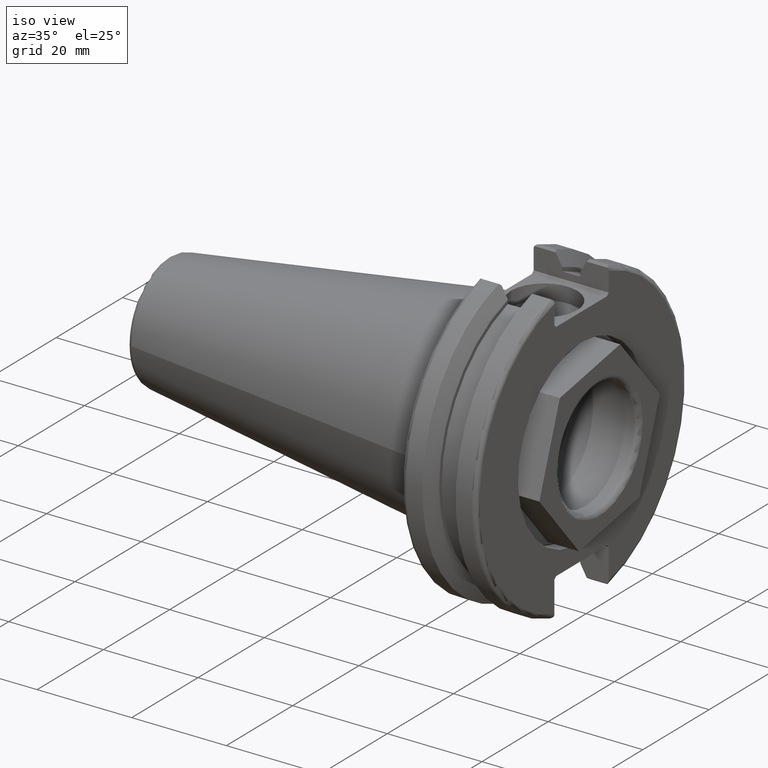
[diagram: clean part render]
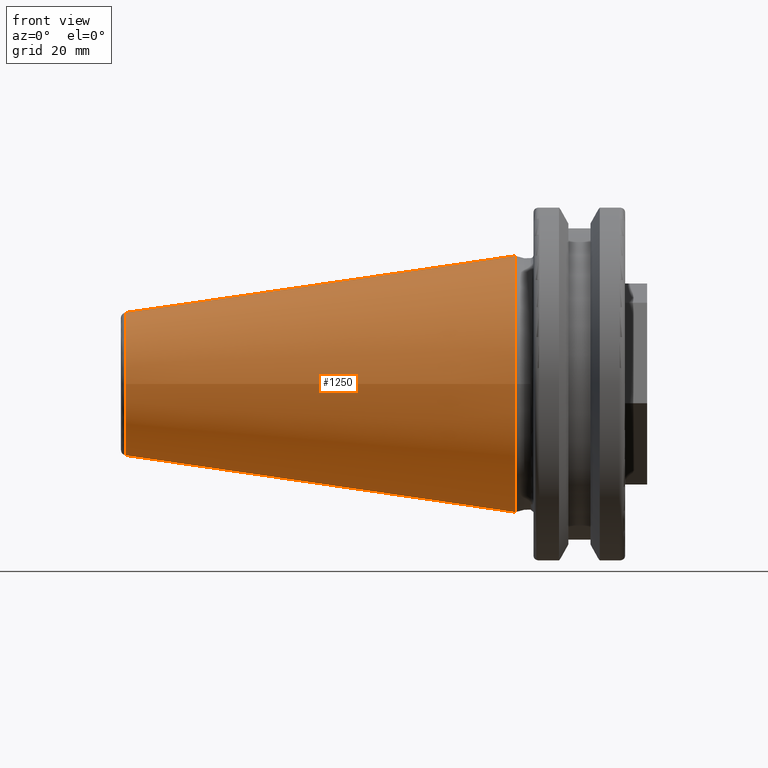
[diagram: tour spotlight — one face highlighted and labeled with its STEP entity id]
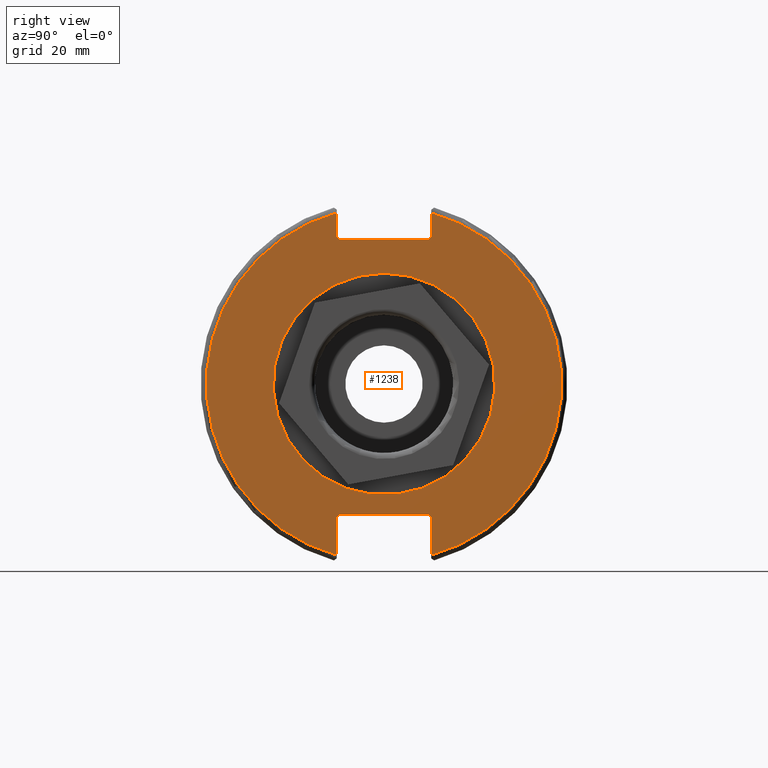
[diagram: tour spotlight — one face highlighted and labeled with its STEP entity id]
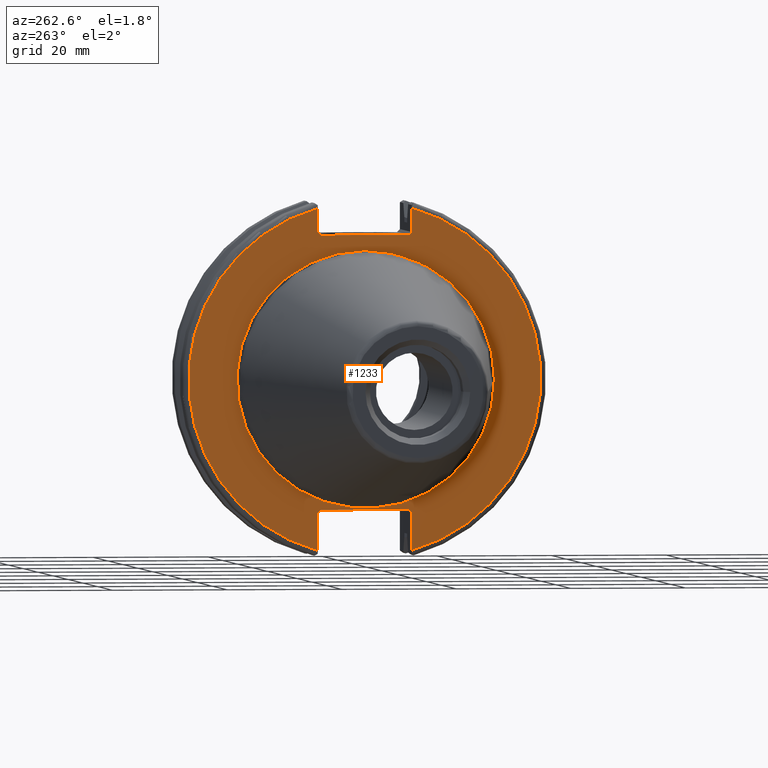
[diagram: tour spotlight — one face highlighted and labeled with its STEP entity id]
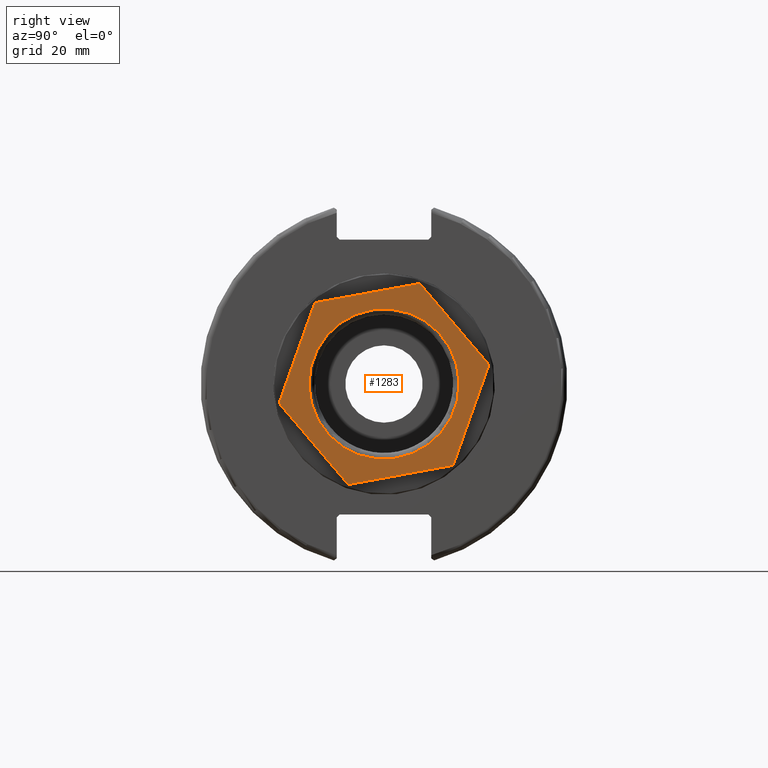
[diagram: tour spotlight — one face highlighted and labeled with its STEP entity id]
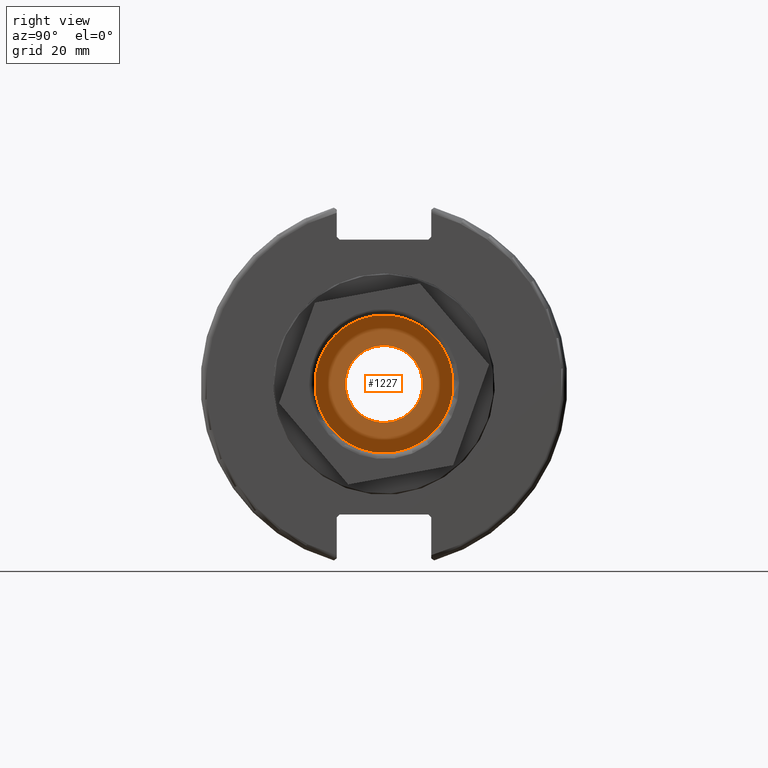
[diagram: tour spotlight — one face highlighted and labeled with its STEP entity id]
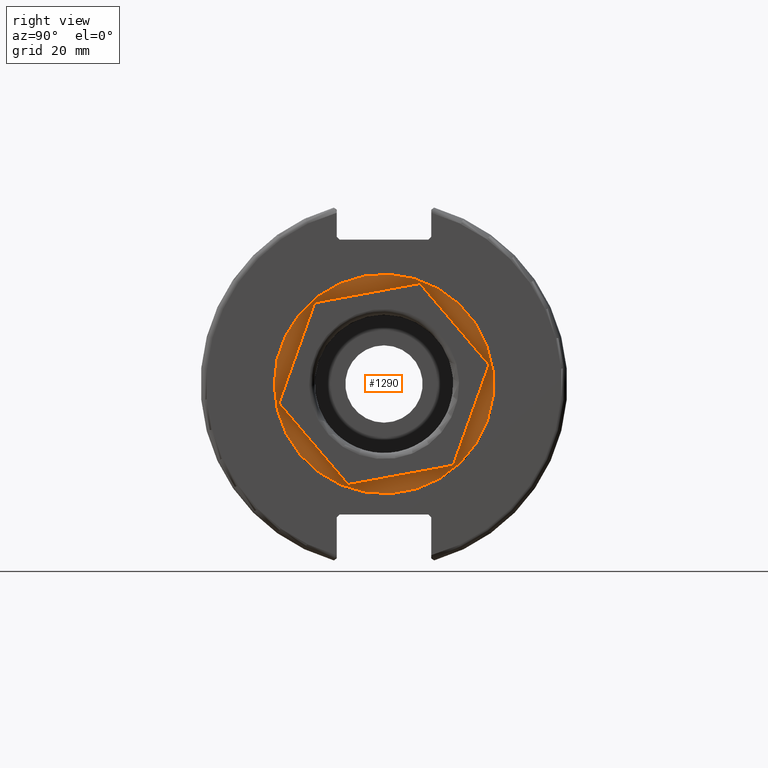
[diagram: tour spotlight — one face highlighted and labeled with its STEP entity id]
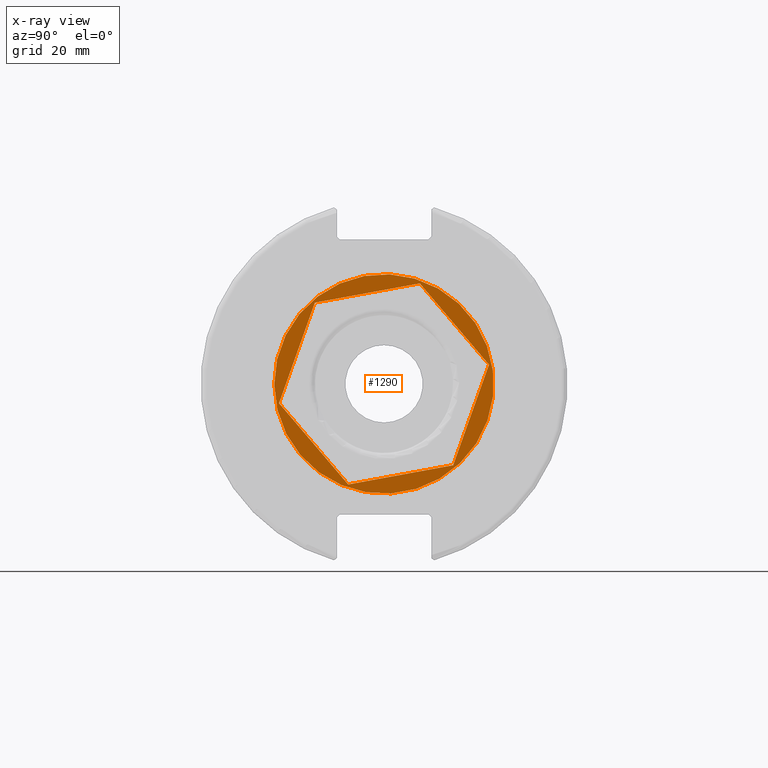
[diagram: x-ray of the same camera — body ghosted, this tour face saturated]
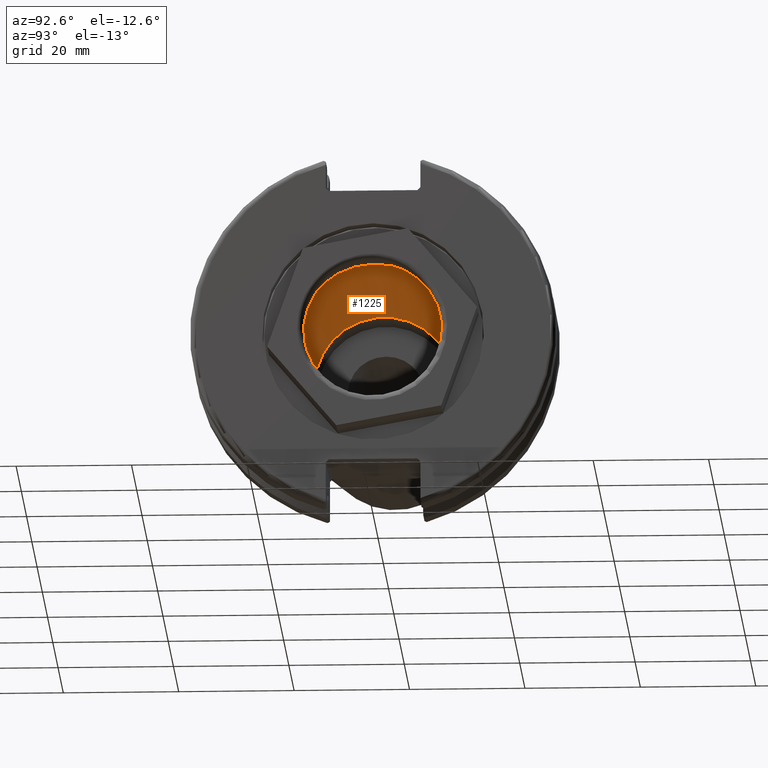
[diagram: tour spotlight — one face highlighted and labeled with its STEP entity id]
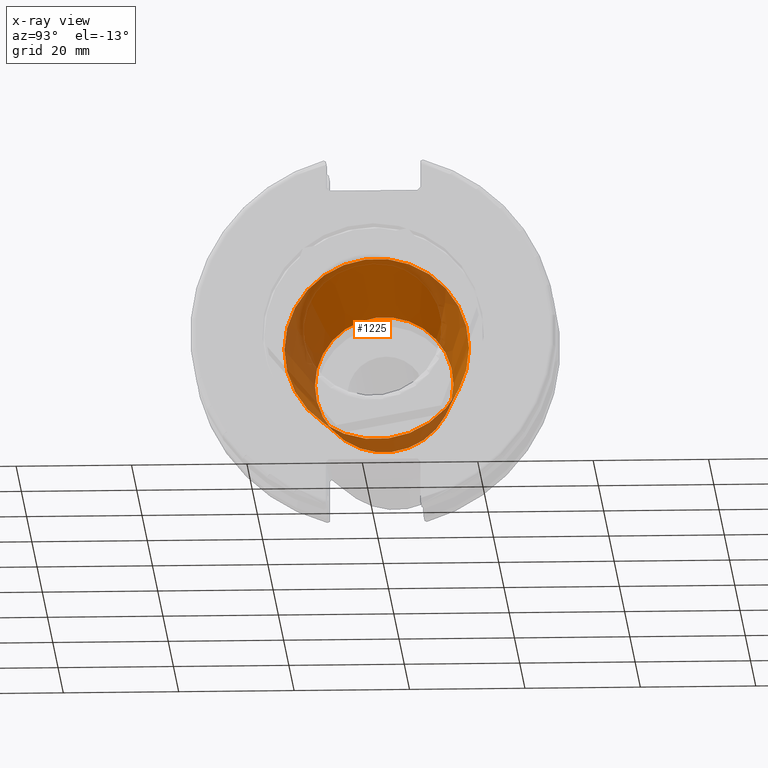
[diagram: x-ray of the same camera — body ghosted, this tour face saturated]
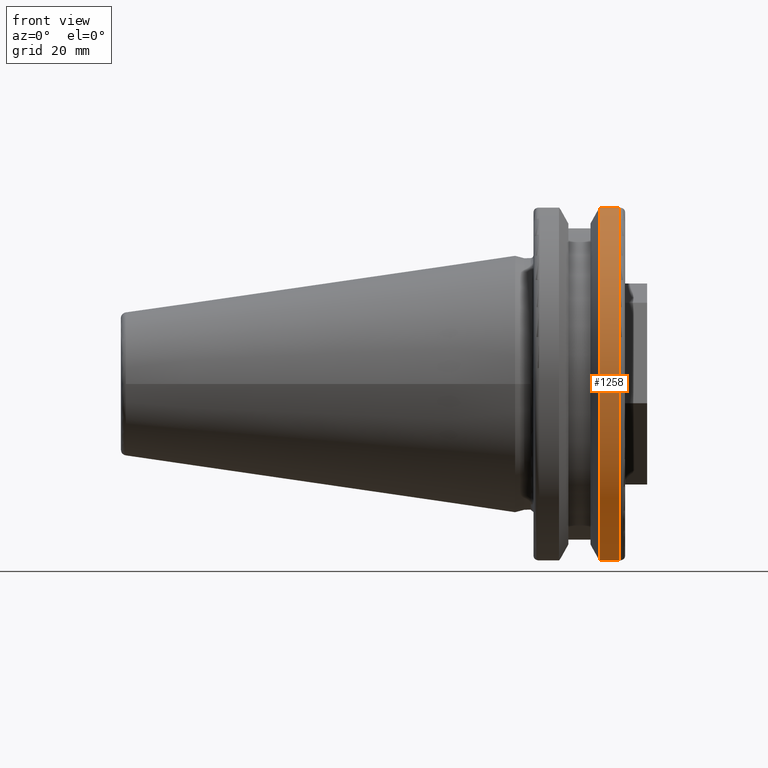
[diagram: tour spotlight — one face highlighted and labeled with its STEP entity id]
A machine part: a face-by-face anatomy tour. The part has 75 B-rep faces; the first image is the clean iso view, then the 8 largest visible faces are spotlighted one at a time (largest first), each with its STEP entity span.

Face 1 — front view, entity #1250. In plain terms, the highlighted conical surface has half-angle 8.297 deg.
Definition (entity closure, byte-faithful):
#120=CONICAL_SURFACE('',#1419,17.2484375,0.144812498238939);
#156=FACE_OUTER_BOUND('',#237,.T.);
#237=EDGE_LOOP('',(#989,#990,#991,#992,#993));
#340=LINE('',#2205,#431);
#431=VECTOR('',#1668,17.2484375);
#497=CIRCLE('',#1413,12.3966635780937);
#498=CIRCLE('',#1414,12.3966635780937);
#502=CIRCLE('',#1420,22.225);
#610=VERTEX_POINT('',#2192);
#611=VERTEX_POINT('',#2193);
#614=VERTEX_POINT('',#2203);
#753=EDGE_CURVE('',#610,#611,#497,.T.);
#754=EDGE_CURVE('',#611,#610,#498,.T.);
#758=EDGE_CURVE('',#614,#614,#502,.T.);
#759=EDGE_CURVE('',#614,#611,#340,.T.);
#989=ORIENTED_EDGE('',*,*,#758,.F.);
#990=ORIENTED_EDGE('',*,*,#759,.T.);
#991=ORIENTED_EDGE('',*,*,#753,.F.);
#992=ORIENTED_EDGE('',*,*,#754,.F.);
#993=ORIENTED_EDGE('',*,*,#759,.F.);
#1250=ADVANCED_FACE('',(#156),#120,.T.);
#1413=AXIS2_PLACEMENT_3D('',#2194,#1652,#1653);
#1414=AXIS2_PLACEMENT_3D('',#2195,#1654,#1655);
#1419=AXIS2_PLACEMENT_3D('',#2202,#1664,#1665);
#1420=AXIS2_PLACEMENT_3D('',#2204,#1666,#1667);
#1652=DIRECTION('center_axis',(-1.,0.,0.));
#1653=DIRECTION('ref_axis',(0.,-1.,3.06161699786838E-17));
#1654=DIRECTION('center_axis',(-1.,0.,0.));
#1655=DIRECTION('ref_axis',(0.,-1.,3.06161699786838E-17));
#1664=DIRECTION('center_axis',(1.,0.,0.));
#1665=DIRECTION('ref_axis',(0.,1.,0.));
#1666=DIRECTION('center_axis',(1.,0.,0.));
#1667=DIRECTION('ref_axis',(0.,0.,-1.));
#1668=DIRECTION('',(-0.989532981063282,0.144306893071729,1.76724974695192E-17));
#2192=CARTESIAN_POINT('',(-67.3943068930717,-1.5181534371019E-15,12.3966635780937));
#2193=CARTESIAN_POINT('',(-67.3943068930718,-12.3966635780937,-1.5181534371019E-15));
#2194=CARTESIAN_POINT('Origin',(-67.3943068930717,0.,-1.89769179637738E-15));
#2195=CARTESIAN_POINT('Origin',(-67.3943068930717,0.,-1.89769179637738E-15));
#2202=CARTESIAN_POINT('Origin',(-34.125,0.,0.));
#2203=CARTESIAN_POINT('',(0.,-22.225,-2.72177751110499E-15));
#2204=CARTESIAN_POINT('Origin',(0.,0.,0.));
#2205=CARTESIAN_POINT('',(-34.125,-17.2484375,-2.11232437746682E-15));

Face 2 — right view, entity #1238. In plain terms, the highlighted planar face has unit normal (1, 0, 0).
Definition (entity closure, byte-faithful):
#71=FACE_BOUND('',#224,.T.);
#85=PLANE('',#1397);
#144=FACE_OUTER_BOUND('',#223,.T.);
#223=EDGE_LOOP('',(#911,#912,#913,#914,#915,#916,#917,#918,#919,#920,#921,
#922));
#224=EDGE_LOOP('',(#923));
#310=LINE('',#1994,#401);
#316=LINE('',#2020,#407);
#317=LINE('',#2022,#408);
#318=LINE('',#2024,#409);
#319=LINE('',#2026,#410);
#320=LINE('',#2028,#411);
#321=LINE('',#2032,#412);
#322=LINE('',#2034,#413);
#323=LINE('',#2036,#414);
#324=LINE('',#2037,#415);
#401=VECTOR('',#1590,10.);
#407=VECTOR('',#1598,10.);
#408=VECTOR('',#1599,10.);
#409=VECTOR('',#1600,10.);
#410=VECTOR('',#1601,10.);
#411=VECTOR('',#1602,10.);
#412=VECTOR('',#1605,10.);
#413=VECTOR('',#1606,10.);
#414=VECTOR('',#1607,10.);
#415=VECTOR('',#1608,10.);
#474=CIRCLE('',#1366,19.188);
#490=CIRCLE('',#1393,30.75);
#492=CIRCLE('',#1398,30.75);
#535=VERTEX_POINT('',#1880);
#561=VERTEX_POINT('',#1949);
#562=VERTEX_POINT('',#1956);
#568=VERTEX_POINT('',#1993);
#575=VERTEX_POINT('',#2019);
#576=VERTEX_POINT('',#2021);
#577=VERTEX_POINT('',#2023);
#578=VERTEX_POINT('',#2025);
#579=VERTEX_POINT('',#2027);
#580=VERTEX_POINT('',#2029);
#581=VERTEX_POINT('',#2031);
#582=VERTEX_POINT('',#2033);
#583=VERTEX_POINT('',#2035);
#656=EDGE_CURVE('',#535,#535,#474,.T.);
#689=EDGE_CURVE('',#561,#562,#490,.T.);
#697=EDGE_CURVE('',#568,#562,#310,.T.);
#706=EDGE_CURVE('',#561,#575,#316,.T.);
#707=EDGE_CURVE('',#576,#575,#317,.T.);
#708=EDGE_CURVE('',#576,#577,#318,.T.);
#709=EDGE_CURVE('',#578,#577,#319,.T.);
#710=EDGE_CURVE('',#578,#579,#320,.T.);
#711=EDGE_CURVE('',#580,#579,#492,.T.);
#712=EDGE_CURVE('',#580,#581,#321,.T.);
#713=EDGE_CURVE('',#582,#581,#322,.T.);
#714=EDGE_CURVE('',#582,#583,#323,.T.);
#715=EDGE_CURVE('',#568,#583,#324,.T.);
#911=ORIENTED_EDGE('',*,*,#689,.F.);
#912=ORIENTED_EDGE('',*,*,#706,.T.);
#913=ORIENTED_EDGE('',*,*,#707,.F.);
#914=ORIENTED_EDGE('',*,*,#708,.T.);
#915=ORIENTED_EDGE('',*,*,#709,.F.);
#916=ORIENTED_EDGE('',*,*,#710,.T.);
#917=ORIENTED_EDGE('',*,*,#711,.F.);
#918=ORIENTED_EDGE('',*,*,#712,.T.);
#919=ORIENTED_EDGE('',*,*,#713,.F.);
#920=ORIENTED_EDGE('',*,*,#714,.T.);
#921=ORIENTED_EDGE('',*,*,#715,.F.);
#922=ORIENTED_EDGE('',*,*,#697,.T.);
#923=ORIENTED_EDGE('',*,*,#656,.T.);
#1238=ADVANCED_FACE('',(#144,#71),#85,.T.);
#1366=AXIS2_PLACEMENT_3D('',#1881,#1510,#1511);
#1393=AXIS2_PLACEMENT_3D('',#1957,#1580,#1581);
#1397=AXIS2_PLACEMENT_3D('',#2018,#1596,#1597);
#1398=AXIS2_PLACEMENT_3D('',#2030,#1603,#1604);
#1510=DIRECTION('center_axis',(-1.,0.,0.));
#1511=DIRECTION('ref_axis',(0.,0.,-1.));
#1580=DIRECTION('center_axis',(-1.,0.,0.));
#1581=DIRECTION('ref_axis',(0.,1.,-6.12323399573677E-17));
#1590=DIRECTION('',(0.,0.,-1.));
#1596=DIRECTION('center_axis',(1.,0.,0.));
#1597=DIRECTION('ref_axis',(0.,0.,-1.));
#1598=DIRECTION('',(0.,0.,-1.));
#1599=DIRECTION('',(0.,0.707106781186549,0.707106781186546));
#1600=DIRECTION('',(0.,-1.,0.));
#1601=DIRECTION('',(0.,0.70710678118655,-0.707106781186545));
#1602=DIRECTION('',(0.,0.,1.));
#1603=DIRECTION('center_axis',(-1.,0.,0.));
#1604=DIRECTION('ref_axis',(0.,-1.,1.60812264967664E-16));
#1605=DIRECTION('',(0.,0.,1.));
#1606=DIRECTION('',(0.,-0.707106781186549,-0.707106781186546));
#1607=DIRECTION('',(0.,1.,0.));
#1608=DIRECTION('',(0.,-0.707106781186549,0.707106781186546));
#1880=CARTESIAN_POINT('',(19.05,-2.34985227820394E-15,19.188));
#1881=CARTESIAN_POINT('Origin',(19.05,0.,0.));
#1949=CARTESIAN_POINT('',(19.05,8.19,29.6392712461019));
#1956=CARTESIAN_POINT('',(19.05,8.19,-29.6392712461019));
#1957=CARTESIAN_POINT('Origin',(19.05,0.,0.));
#1993=CARTESIAN_POINT('',(19.05,8.19,-23.1));
#1994=CARTESIAN_POINT('',(19.05,8.19,-11.3));
#2018=CARTESIAN_POINT('Origin',(19.05,0.,0.));
#2019=CARTESIAN_POINT('',(19.05,8.19,25.5));
#2020=CARTESIAN_POINT('',(19.05,8.19,12.5));
#2021=CARTESIAN_POINT('',(19.05,7.69,25.));
#2022=CARTESIAN_POINT('',(19.05,-0.35750000000001,16.9525));
#2023=CARTESIAN_POINT('',(19.05,-7.69,25.));
#2024=CARTESIAN_POINT('',(19.05,0.,25.));
#2025=CARTESIAN_POINT('',(19.05,-8.19,25.5));
#2026=CARTESIAN_POINT('',(19.05,0.357500000000014,16.9525));
#2027=CARTESIAN_POINT('',(19.05,-8.19,29.6392712461019));
#2028=CARTESIAN_POINT('',(19.05,-8.19,12.5));
#2029=CARTESIAN_POINT('',(19.05,-8.19,-29.6392712461019));
#2030=CARTESIAN_POINT('Origin',(19.05,0.,0.));
#2031=CARTESIAN_POINT('',(19.05,-8.19,-23.1));
#2032=CARTESIAN_POINT('',(19.05,-8.19,-11.3));
#2033=CARTESIAN_POINT('',(19.05,-7.69,-22.6));
#2034=CARTESIAN_POINT('',(19.05,-0.242499999999991,-15.1525));
#2035=CARTESIAN_POINT('',(19.05,7.69,-22.6));
#2036=CARTESIAN_POINT('',(19.05,-2.77555756156289E-16,-22.6));
#2037=CARTESIAN_POINT('',(19.05,0.242499999999989,-15.1525));

Face 3 — auxiliary view, entity #1233. In plain terms, the highlighted planar face has unit normal (-1, 0, 0).
Definition (entity closure, byte-faithful):
#70=FACE_BOUND('',#218,.T.);
#82=PLANE('',#1387);
#139=FACE_OUTER_BOUND('',#217,.T.);
#217=EDGE_LOOP('',(#871,#872,#873,#874,#875,#876,#877,#878,#879,#880,#881,
#882));
#218=EDGE_LOOP('',(#883));
#297=LINE('',#1923,#388);
#298=LINE('',#1925,#389);
#299=LINE('',#1927,#390);
#300=LINE('',#1929,#391);
#301=LINE('',#1931,#392);
#302=LINE('',#1935,#393);
#303=LINE('',#1937,#394);
#304=LINE('',#1939,#395);
#305=LINE('',#1941,#396);
#306=LINE('',#1942,#397);
#388=VECTOR('',#1561,10.);
#389=VECTOR('',#1562,10.);
#390=VECTOR('',#1563,10.);
#391=VECTOR('',#1564,10.);
#392=VECTOR('',#1565,10.);
#393=VECTOR('',#1568,10.);
#394=VECTOR('',#1569,10.);
#395=VECTOR('',#1570,10.);
#396=VECTOR('',#1571,10.);
#397=VECTOR('',#1572,10.);
#485=CIRCLE('',#1385,22.3);
#487=CIRCLE('',#1388,30.75);
#488=CIRCLE('',#1389,30.75);
#546=VERTEX_POINT('',#1914);
#547=VERTEX_POINT('',#1919);
#548=VERTEX_POINT('',#1920);
#549=VERTEX_POINT('',#1922);
#550=VERTEX_POINT('',#1924);
#551=VERTEX_POINT('',#1926);
#552=VERTEX_POINT('',#1928);
#553=VERTEX_POINT('',#1930);
#554=VERTEX_POINT('',#1932);
#555=VERTEX_POINT('',#1934);
#556=VERTEX_POINT('',#1936);
#557=VERTEX_POINT('',#1938);
#558=VERTEX_POINT('',#1940);
#672=EDGE_CURVE('',#546,#546,#485,.T.);
#674=EDGE_CURVE('',#547,#548,#487,.T.);
#675=EDGE_CURVE('',#547,#549,#297,.T.);
#676=EDGE_CURVE('',#550,#549,#298,.T.);
#677=EDGE_CURVE('',#550,#551,#299,.T.);
#678=EDGE_CURVE('',#552,#551,#300,.T.);
#679=EDGE_CURVE('',#552,#553,#301,.T.);
#680=EDGE_CURVE('',#554,#553,#488,.T.);
#681=EDGE_CURVE('',#554,#555,#302,.T.);
#682=EDGE_CURVE('',#556,#555,#303,.T.);
#683=EDGE_CURVE('',#556,#557,#304,.T.);
#684=EDGE_CURVE('',#558,#557,#305,.T.);
#685=EDGE_CURVE('',#558,#548,#306,.T.);
#871=ORIENTED_EDGE('',*,*,#674,.F.);
#872=ORIENTED_EDGE('',*,*,#675,.T.);
#873=ORIENTED_EDGE('',*,*,#676,.F.);
#874=ORIENTED_EDGE('',*,*,#677,.T.);
#875=ORIENTED_EDGE('',*,*,#678,.F.);
#876=ORIENTED_EDGE('',*,*,#679,.T.);
#877=ORIENTED_EDGE('',*,*,#680,.F.);
#878=ORIENTED_EDGE('',*,*,#681,.T.);
#879=ORIENTED_EDGE('',*,*,#682,.F.);
#880=ORIENTED_EDGE('',*,*,#683,.T.);
#881=ORIENTED_EDGE('',*,*,#684,.F.);
#882=ORIENTED_EDGE('',*,*,#685,.T.);
#883=ORIENTED_EDGE('',*,*,#672,.F.);
#1233=ADVANCED_FACE('',(#139,#70),#82,.T.);
#1385=AXIS2_PLACEMENT_3D('',#1916,#1553,#1554);
#1387=AXIS2_PLACEMENT_3D('',#1918,#1557,#1558);
#1388=AXIS2_PLACEMENT_3D('',#1921,#1559,#1560);
#1389=AXIS2_PLACEMENT_3D('',#1933,#1566,#1567);
#1553=DIRECTION('center_axis',(-1.,0.,0.));
#1554=DIRECTION('ref_axis',(0.,-1.,1.83697019872103E-16));
#1557=DIRECTION('center_axis',(-1.,0.,0.));
#1558=DIRECTION('ref_axis',(0.,0.,1.));
#1559=DIRECTION('center_axis',(1.,0.,0.));
#1560=DIRECTION('ref_axis',(0.,-1.,1.60812264967664E-16));
#1561=DIRECTION('',(0.,0.,-1.));
#1562=DIRECTION('',(0.,-0.70710678118655,0.707106781186545));
#1563=DIRECTION('',(0.,1.,0.));
#1564=DIRECTION('',(0.,-0.707106781186549,-0.707106781186546));
#1565=DIRECTION('',(0.,0.,1.));
#1566=DIRECTION('center_axis',(1.,0.,0.));
#1567=DIRECTION('ref_axis',(0.,1.,1.60812264967664E-16));
#1568=DIRECTION('',(0.,0.,1.));
#1569=DIRECTION('',(0.,0.707106781186549,-0.707106781186546));
#1570=DIRECTION('',(0.,-1.,0.));
#1571=DIRECTION('',(0.,0.707106781186549,0.707106781186546));
#1572=DIRECTION('',(0.,0.,-1.));
#1914=CARTESIAN_POINT('',(3.175,-2.7309623620986E-15,22.3));
#1916=CARTESIAN_POINT('Origin',(3.175,0.,0.));
#1918=CARTESIAN_POINT('Origin',(3.175,31.75,0.));
#1919=CARTESIAN_POINT('',(3.175,-8.18999999999999,29.6392712461019));
#1920=CARTESIAN_POINT('',(3.175,-8.19,-29.6392712461019));
#1921=CARTESIAN_POINT('Origin',(3.175,0.,0.));
#1922=CARTESIAN_POINT('',(3.175,-8.18999999999999,25.5));
#1923=CARTESIAN_POINT('',(3.175,-8.18999999999999,12.5));
#1924=CARTESIAN_POINT('',(3.175,-7.68999999999999,25.));
#1925=CARTESIAN_POINT('',(3.175,8.29500000000007,9.01500000000004));
#1926=CARTESIAN_POINT('',(3.175,7.69,25.));
#1927=CARTESIAN_POINT('',(3.175,15.875,25.));
#1928=CARTESIAN_POINT('',(3.175,8.19,25.5));
#1929=CARTESIAN_POINT('',(3.175,7.58000000000002,24.89));
#1930=CARTESIAN_POINT('',(3.175,8.19,29.6392712461019));
#1931=CARTESIAN_POINT('',(3.175,8.19,12.5));
#1932=CARTESIAN_POINT('',(3.175,8.18999999999999,-29.6392712461019));
#1933=CARTESIAN_POINT('Origin',(3.175,0.,0.));
#1934=CARTESIAN_POINT('',(3.175,8.18999999999999,-23.1));
#1935=CARTESIAN_POINT('',(3.175,8.18999999999999,-11.3));
#1936=CARTESIAN_POINT('',(3.175,7.69,-22.6));
#1937=CARTESIAN_POINT('',(3.175,8.18000000000002,-23.09));
#1938=CARTESIAN_POINT('',(3.175,-7.69,-22.6));
#1939=CARTESIAN_POINT('',(3.175,15.875,-22.6));
#1940=CARTESIAN_POINT('',(3.175,-8.19,-23.1));
#1941=CARTESIAN_POINT('',(3.175,7.69500000000004,-7.21500000000002));
#1942=CARTESIAN_POINT('',(3.175,-8.19,-11.3));

Face 4 — right view, entity #1283. In plain terms, the highlighted planar face has unit normal (1, 0, 0).
Definition (entity closure, byte-faithful):
#75=FACE_BOUND('',#273,.T.);
#109=PLANE('',#1474);
#189=FACE_OUTER_BOUND('',#272,.T.);
#272=EDGE_LOOP('',(#1136,#1137,#1138,#1139,#1140,#1141));
#273=EDGE_LOOP('',(#1142));
#360=LINE('',#2317,#451);
#361=LINE('',#2319,#452);
#362=LINE('',#2321,#453);
#363=LINE('',#2323,#454);
#364=LINE('',#2325,#455);
#365=LINE('',#2326,#456);
#451=VECTOR('',#1796,10.);
#452=VECTOR('',#1797,10.);
#453=VECTOR('',#1798,10.);
#454=VECTOR('',#1799,10.);
#455=VECTOR('',#1800,10.);
#456=VECTOR('',#1801,10.);
#518=CIRCLE('',#1468,13.);
#629=VERTEX_POINT('',#2303);
#633=VERTEX_POINT('',#2315);
#634=VERTEX_POINT('',#2316);
#635=VERTEX_POINT('',#2318);
#636=VERTEX_POINT('',#2320);
#637=VERTEX_POINT('',#2322);
#638=VERTEX_POINT('',#2324);
#799=EDGE_CURVE('',#629,#629,#518,.T.);
#805=EDGE_CURVE('',#633,#634,#360,.T.);
#806=EDGE_CURVE('',#634,#635,#361,.T.);
#807=EDGE_CURVE('',#635,#636,#362,.T.);
#808=EDGE_CURVE('',#636,#637,#363,.T.);
#809=EDGE_CURVE('',#637,#638,#364,.T.);
#810=EDGE_CURVE('',#638,#633,#365,.T.);
#1136=ORIENTED_EDGE('',*,*,#805,.T.);
#1137=ORIENTED_EDGE('',*,*,#806,.T.);
#1138=ORIENTED_EDGE('',*,*,#807,.T.);
#1139=ORIENTED_EDGE('',*,*,#808,.T.);
#1140=ORIENTED_EDGE('',*,*,#809,.T.);
#1141=ORIENTED_EDGE('',*,*,#810,.T.);
#1142=ORIENTED_EDGE('',*,*,#799,.F.);
#1283=ADVANCED_FACE('',(#189,#75),#109,.T.);
#1468=AXIS2_PLACEMENT_3D('',#2304,#1781,#1782);
#1474=AXIS2_PLACEMENT_3D('',#2314,#1794,#1795);
#1781=DIRECTION('center_axis',(1.,0.,0.));
#1782=DIRECTION('ref_axis',(0.,-1.,-1.22464679914735E-16));
#1794=DIRECTION('center_axis',(1.,0.,0.));
#1795=DIRECTION('ref_axis',(0.,0.,-1.));
#1796=DIRECTION('',(0.,1.20185167898973E-16,1.));
#1797=DIRECTION('',(0.,-0.866025403784439,0.5));
#1798=DIRECTION('',(0.,-0.866025403784439,-0.5));
#1799=DIRECTION('',(0.,0.,-1.));
#1800=DIRECTION('',(0.,0.866025403784439,-0.5));
#1801=DIRECTION('',(0.,0.866025403784439,0.5));
#2303=CARTESIAN_POINT('',(6.60000000000001,-1.59204083889156E-15,-13.));
#2304=CARTESIAN_POINT('Origin',(6.6,0.,0.));
#2314=CARTESIAN_POINT('Origin',(6.6,2.22044604925031E-15,-3.33066907387547E-15));
#2315=CARTESIAN_POINT('',(6.6,16.,-9.23760430703402));
#2316=CARTESIAN_POINT('',(6.6,16.,9.23760430703402));
#2317=CARTESIAN_POINT('',(6.6,16.,-9.23760430703402));
#2318=CARTESIAN_POINT('',(6.6,0.,18.475208614068));
#2319=CARTESIAN_POINT('',(6.6,16.,9.23760430703402));
#2320=CARTESIAN_POINT('',(6.6,-16.,9.23760430703401));
#2321=CARTESIAN_POINT('',(6.6,0.,18.475208614068));
#2322=CARTESIAN_POINT('',(6.6,-16.,-9.23760430703402));
#2323=CARTESIAN_POINT('',(6.6,-16.,9.23760430703401));
#2324=CARTESIAN_POINT('',(6.6,0.,-18.475208614068));
#2325=CARTESIAN_POINT('',(6.6,-16.,-9.23760430703402));
#2326=CARTESIAN_POINT('',(6.6,0.,-18.475208614068));

Face 5 — right view, entity #1227. In plain terms, the highlighted planar face has unit normal (-1, 0, 0).
Definition (entity closure, byte-faithful):
#67=FACE_BOUND('',#209,.T.);
#79=PLANE('',#1373);
#133=FACE_OUTER_BOUND('',#208,.T.);
#208=EDGE_LOOP('',(#852));
#209=EDGE_LOOP('',(#853));
#478=CIRCLE('',#1372,12.);
#479=CIRCLE('',#1374,6.6929);
#539=VERTEX_POINT('',#1892);
#540=VERTEX_POINT('',#1896);
#663=EDGE_CURVE('',#539,#539,#478,.T.);
#664=EDGE_CURVE('',#540,#540,#479,.T.);
#852=ORIENTED_EDGE('',*,*,#663,.F.);
#853=ORIENTED_EDGE('',*,*,#664,.F.);
#1227=ADVANCED_FACE('',(#133,#67),#79,.F.);
#1372=AXIS2_PLACEMENT_3D('',#1894,#1525,#1526);
#1373=AXIS2_PLACEMENT_3D('',#1895,#1527,#1528);
#1374=AXIS2_PLACEMENT_3D('',#1897,#1529,#1530);
#1525=DIRECTION('center_axis',(-1.,0.,0.));
#1526=DIRECTION('ref_axis',(0.,0.,1.));
#1527=DIRECTION('center_axis',(-1.,0.,0.));
#1528=DIRECTION('ref_axis',(0.,0.,1.));
#1529=DIRECTION('center_axis',(1.,0.,0.));
#1530=DIRECTION('ref_axis',(0.,0.,1.));
#1892=CARTESIAN_POINT('',(-30.95,-12.,1.46957615897682E-15));
#1894=CARTESIAN_POINT('Origin',(-30.95,0.,0.));
#1895=CARTESIAN_POINT('Origin',(-30.95,-6.66133814775094E-15,0.));
#1896=CARTESIAN_POINT('',(-30.95,8.19643856201332E-16,-6.6929));
#1897=CARTESIAN_POINT('Origin',(-30.95,0.,0.));

Face 6 — right view, entity #1290. An x-ray twin of the same camera follows (body ghosted, this face saturated) — the face is partly hidden behind the body. In plain terms, the highlighted planar face has unit normal (1, 0, 0).
Definition (entity closure, byte-faithful):
#77=FACE_BOUND('',#282,.T.);
#111=PLANE('',#1492);
#196=FACE_OUTER_BOUND('',#281,.T.);
#281=EDGE_LOOP('',(#1171));
#282=EDGE_LOOP('',(#1172,#1173,#1174,#1175,#1176,#1177));
#370=LINE('',#2361,#461);
#371=LINE('',#2363,#462);
#372=LINE('',#2365,#463);
#373=LINE('',#2367,#464);
#374=LINE('',#2369,#465);
#375=LINE('',#2370,#466);
#461=VECTOR('',#1842,10.);
#462=VECTOR('',#1843,10.);
#463=VECTOR('',#1844,10.);
#464=VECTOR('',#1845,10.);
#465=VECTOR('',#1846,10.);
#466=VECTOR('',#1847,10.);
#533=CIRCLE('',#1491,19.);
#648=VERTEX_POINT('',#2355);
#649=VERTEX_POINT('',#2359);
#650=VERTEX_POINT('',#2360);
#651=VERTEX_POINT('',#2362);
#652=VERTEX_POINT('',#2364);
#653=VERTEX_POINT('',#2366);
#654=VERTEX_POINT('',#2368);
#824=EDGE_CURVE('',#648,#648,#533,.T.);
#826=EDGE_CURVE('',#649,#650,#370,.T.);
#827=EDGE_CURVE('',#650,#651,#371,.T.);
#828=EDGE_CURVE('',#651,#652,#372,.T.);
#829=EDGE_CURVE('',#652,#653,#373,.T.);
#830=EDGE_CURVE('',#653,#654,#374,.T.);
#831=EDGE_CURVE('',#654,#649,#375,.T.);
#1171=ORIENTED_EDGE('',*,*,#824,.F.);
#1172=ORIENTED_EDGE('',*,*,#826,.T.);
#1173=ORIENTED_EDGE('',*,*,#827,.T.);
#1174=ORIENTED_EDGE('',*,*,#828,.T.);
#1175=ORIENTED_EDGE('',*,*,#829,.T.);
#1176=ORIENTED_EDGE('',*,*,#830,.T.);
#1177=ORIENTED_EDGE('',*,*,#831,.T.);
#1290=ADVANCED_FACE('',(#196,#77),#111,.T.);
#1491=AXIS2_PLACEMENT_3D('',#2356,#1837,#1838);
#1492=AXIS2_PLACEMENT_3D('',#2358,#1840,#1841);
#1837=DIRECTION('center_axis',(-1.,0.,0.));
#1838=DIRECTION('ref_axis',(0.,-1.,0.));
#1840=DIRECTION('center_axis',(1.,0.,0.));
#1841=DIRECTION('ref_axis',(0.,0.,-1.));
#1842=DIRECTION('',(0.,-0.866025403784439,-0.5));
#1843=DIRECTION('',(0.,-0.866025403784439,0.5));
#1844=DIRECTION('',(0.,0.,1.));
#1845=DIRECTION('',(0.,0.866025403784439,0.5));
#1846=DIRECTION('',(0.,0.866025403784439,-0.5));
#1847=DIRECTION('',(0.,-1.20185167898973E-16,-1.));
#2355=CARTESIAN_POINT('',(1.11022302462516E-15,19.,-2.32682891837997E-15));
#2356=CARTESIAN_POINT('Origin',(1.11022302462516E-15,0.,0.));
#2358=CARTESIAN_POINT('Origin',(1.11022302462516E-15,1.00534802373151E-15,
0.));
#2359=CARTESIAN_POINT('',(1.11022302462516E-15,16.,-9.23760430703402));
#2360=CARTESIAN_POINT('',(1.11022302462516E-15,-4.4030870386767E-17,-18.475208614068));
#2361=CARTESIAN_POINT('',(1.11022302462516E-15,4.,-16.1658075373095));
#2362=CARTESIAN_POINT('',(1.11022302462516E-15,-16.,-9.23760430703402));
#2363=CARTESIAN_POINT('',(1.11022302462516E-15,-12.,-11.5470053837925));
#2364=CARTESIAN_POINT('',(1.11022302462516E-15,-16.,9.23760430703401));
#2365=CARTESIAN_POINT('',(1.11022302462516E-15,-16.,4.618802153517));
#2366=CARTESIAN_POINT('',(1.11022302462516E-15,-6.49858520003956E-16,18.475208614068));
#2367=CARTESIAN_POINT('',(1.11022302462516E-15,-4.,16.1658075373095));
#2368=CARTESIAN_POINT('',(1.11022302462516E-15,16.,9.23760430703402));
#2369=CARTESIAN_POINT('',(1.11022302462516E-15,12.,11.5470053837925));
#2370=CARTESIAN_POINT('',(1.11022302462516E-15,16.,-4.61880215351701));

Face 7 — auxiliary view, entity #1225. An x-ray twin of the same camera follows (body ghosted, this face saturated) — the face is partly hidden behind the body. In plain terms, the highlighted conical surface has half-angle 8 deg.
Definition (entity closure, byte-faithful):
#119=CONICAL_SURFACE('',#1368,14.,0.139626340159547);
#131=FACE_OUTER_BOUND('',#206,.T.);
#206=EDGE_LOOP('',(#844,#845,#846,#847));
#293=LINE('',#1889,#384);
#384=VECTOR('',#1519,14.);
#476=CIRCLE('',#1369,16.);
#477=CIRCLE('',#1370,12.);
#537=VERTEX_POINT('',#1886);
#538=VERTEX_POINT('',#1888);
#659=EDGE_CURVE('',#537,#537,#476,.T.);
#660=EDGE_CURVE('',#537,#538,#293,.T.);
#661=EDGE_CURVE('',#538,#538,#477,.T.);
#844=ORIENTED_EDGE('',*,*,#659,.F.);
#845=ORIENTED_EDGE('',*,*,#660,.T.);
#846=ORIENTED_EDGE('',*,*,#661,.T.);
#847=ORIENTED_EDGE('',*,*,#660,.F.);
#1225=ADVANCED_FACE('',(#131),#119,.F.);
#1368=AXIS2_PLACEMENT_3D('',#1885,#1515,#1516);
#1369=AXIS2_PLACEMENT_3D('',#1887,#1517,#1518);
#1370=AXIS2_PLACEMENT_3D('',#1890,#1520,#1521);
#1515=DIRECTION('center_axis',(1.,0.,0.));
#1516=DIRECTION('ref_axis',(0.,1.,0.));
#1517=DIRECTION('center_axis',(-1.,0.,0.));
#1518=DIRECTION('ref_axis',(0.,0.,1.));
#1519=DIRECTION('',(-0.99026806874157,0.139173100960066,-1.70437892618156E-17));
#1520=DIRECTION('center_axis',(-1.,0.,0.));
#1521=DIRECTION('ref_axis',(0.,0.,1.));
#1885=CARTESIAN_POINT('Origin',(-9.18073944476837,0.,0.));
#1886=CARTESIAN_POINT('',(5.05,-16.,1.95943487863577E-15));
#1887=CARTESIAN_POINT('Origin',(5.05,0.,0.));
#1888=CARTESIAN_POINT('',(-23.4114788895367,-12.,1.46957615897682E-15));
#1889=CARTESIAN_POINT('',(-9.18073944476837,-14.,1.71450551880629E-15));
#1890=CARTESIAN_POINT('Origin',(-23.4114788895367,0.,0.));

Face 8 — front view, entity #1258. In plain terms, the highlighted cylindrical surface (partial cylindrical patch) has radius 31.75 mm, axis along (1, 0, 0).
Definition (entity closure, byte-faithful):
#164=FACE_OUTER_BOUND('',#245,.T.);
#245=EDGE_LOOP('',(#1030,#1031,#1032,#1033));
#351=LINE('',#2236,#442);
#352=LINE('',#2242,#443);
#442=VECTOR('',#1693,10.);
#443=VECTOR('',#1696,10.);
#493=CIRCLE('',#1400,31.75);
#503=CIRCLE('',#1429,31.75);
#586=VERTEX_POINT('',#2053);
#587=VERTEX_POINT('',#2062);
#621=VERTEX_POINT('',#2235);
#622=VERTEX_POINT('',#2241);
#719=EDGE_CURVE('',#586,#587,#493,.T.);
#772=EDGE_CURVE('',#587,#621,#351,.T.);
#774=EDGE_CURVE('',#622,#586,#352,.T.);
#775=EDGE_CURVE('',#622,#621,#503,.T.);
#1030=ORIENTED_EDGE('',*,*,#719,.F.);
#1031=ORIENTED_EDGE('',*,*,#774,.F.);
#1032=ORIENTED_EDGE('',*,*,#775,.T.);
#1033=ORIENTED_EDGE('',*,*,#772,.F.);
#1214=CYLINDRICAL_SURFACE('',#1428,31.75);
#1258=ADVANCED_FACE('',(#164),#1214,.T.);
#1400=AXIS2_PLACEMENT_3D('',#2063,#1611,#1612);
#1428=AXIS2_PLACEMENT_3D('',#2240,#1694,#1695);
#1429=AXIS2_PLACEMENT_3D('',#2243,#1697,#1698);
#1611=DIRECTION('center_axis',(1.,0.,0.));
#1612=DIRECTION('ref_axis',(0.,-1.,1.60812264967664E-16));
#1693=DIRECTION('',(-1.,0.,0.));
#1694=DIRECTION('center_axis',(1.,0.,0.));
#1695=DIRECTION('ref_axis',(0.,-1.,1.22464679914735E-16));
#1696=DIRECTION('',(1.,0.,0.));
#1697=DIRECTION('center_axis',(1.,0.,0.));
#1698=DIRECTION('ref_axis',(0.,0.,-1.));
#2053=CARTESIAN_POINT('',(18.05,-8.67204822802685,30.5427254764662));
#2062=CARTESIAN_POINT('',(18.05,-8.67204822802685,-30.5427254764662));
#2063=CARTESIAN_POINT('Origin',(18.05,0.,0.));
#2235=CARTESIAN_POINT('',(14.6531667690756,-8.67204822802685,-30.5427254764662));
#2236=CARTESIAN_POINT('',(16.8515833845378,-8.67204822802685,-30.5427254764662));
#2240=CARTESIAN_POINT('Origin',(16.8515833845378,0.,0.));
#2241=CARTESIAN_POINT('',(14.6531667690756,-8.67204822802685,30.5427254764662));
#2242=CARTESIAN_POINT('',(16.8515833845378,-8.67204822802685,30.5427254764662));
#2243=CARTESIAN_POINT('Origin',(14.6531667690756,0.,0.));